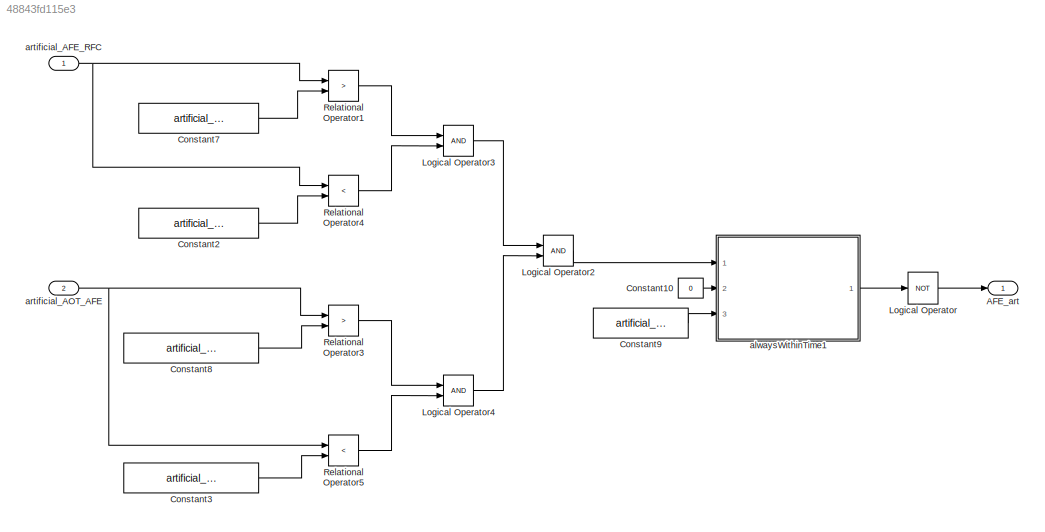
MODEL slx_48843fd115e3
KIND model
CONFIG AbsTol = auto
CONFIG EnableMultiTasking = off
CONFIG FixedStep = fixedStepSize
CONFIG MaxStep = auto
CONFIG MinStep = auto
CONFIG RelTol = 1e-3
CONFIG SampleTimeConstraint = Unconstrained
CONFIG Solver = FixedStepAuto
CONFIG SolverName = FixedStepAuto
CONFIG StartTime = 0.0
CONFIG StopTime = 10.0
BLOCK [Outport] AFE_art
  IconDisplay = Port number
  OutDataTypeStr = boolean
  PortDimensions = 1
  SamplingMode = Sample based
  SignalType = real
  VectorParamsAs1DForOutWhenUnconnected = off
BLOCK [Constant] Constant10
  Value = 0
BLOCK [Constant] Constant2
  Value = artificial_AFE_RFC_max
BLOCK [Constant] Constant3
  Value = artificial_AOT_AFE_max
BLOCK [Constant] Constant7
  Value = artificial_AFE_RFC_min
BLOCK [Constant] Constant8
  Value = artificial_AOT_AFE_min
BLOCK [Constant] Constant9
  Value = artificial_AFE_time
BLOCK [Logic] Logical Operator
  AllPortsSameDT = off
  Operator = NOT
  OutDataTypeStr = boolean
  Ports = [1, 1]
BLOCK [Logic] Logical Operator2
  AllPortsSameDT = off
  OutDataTypeStr = boolean
  Ports = [2, 1]
BLOCK [Logic] Logical Operator3
  AllPortsSameDT = off
  OutDataTypeStr = boolean
  Ports = [2, 1]
BLOCK [Logic] Logical Operator4
  AllPortsSameDT = off
  OutDataTypeStr = boolean
  Ports = [2, 1]
BLOCK [RelationalOperator] Relational Operator1
  InputSameDT = off
  Operator = >
  OutDataTypeStr = boolean
  Ports = [2, 1]
  RndMeth = Simplest
BLOCK [RelationalOperator] Relational Operator3
  InputSameDT = off
  Operator = >
  OutDataTypeStr = boolean
  Ports = [2, 1]
  RndMeth = Simplest
BLOCK [RelationalOperator] Relational Operator4
  InputSameDT = off
  Operator = <
  OutDataTypeStr = boolean
  Ports = [2, 1]
  RndMeth = Simplest
BLOCK [RelationalOperator] Relational Operator5
  InputSameDT = off
  Operator = <
  OutDataTypeStr = boolean
  Ports = [2, 1]
  RndMeth = Simplest
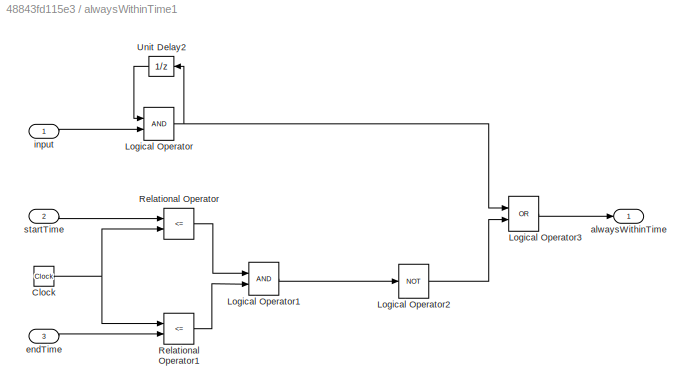
BLOCK [SubSystem] alwaysWithinTime1
  CopyFcn = set_param(gcbh,'LinkStatus','none');
  Ports = [3, 1]
  RequestExecContextInheritance = off
BLOCK [Clock] alwaysWithinTime1/Clock
BLOCK [Logic] alwaysWithinTime1/Logical Operator
  AllPortsSameDT = off
  OutDataTypeStr = boolean
  Ports = [2, 1]
BLOCK [Logic] alwaysWithinTime1/Logical Operator1
  AllPortsSameDT = off
  OutDataTypeStr = boolean
  Ports = [2, 1]
BLOCK [Logic] alwaysWithinTime1/Logical Operator2
  AllPortsSameDT = off
  Operator = NOT
  OutDataTypeStr = boolean
  Ports = [1, 1]
BLOCK [Logic] alwaysWithinTime1/Logical Operator3
  AllPortsSameDT = off
  Operator = OR
  OutDataTypeStr = boolean
  Ports = [2, 1]
BLOCK [RelationalOperator] alwaysWithinTime1/Relational Operator
  InputSameDT = off
  Operator = <=
  OutDataTypeStr = boolean
  Ports = [2, 1]
  RndMeth = Simplest
BLOCK [RelationalOperator] alwaysWithinTime1/Relational Operator1
  InputSameDT = off
  Operator = <=
  OutDataTypeStr = boolean
  Ports = [2, 1]
  RndMeth = Simplest
BLOCK [UnitDelay] alwaysWithinTime1/Unit Delay2
  HasFrameUpgradeWarning = on
  InitialCondition = 1
  SampleTime = -1
BLOCK [Outport] alwaysWithinTime1/alwaysWithinTime
  IconDisplay = Port number
  VectorParamsAs1DForOutWhenUnconnected = off
BLOCK [Inport] alwaysWithinTime1/endTime
  IconDisplay = Port number
  Port = 3
BLOCK [Inport] alwaysWithinTime1/input
  IconDisplay = Port number
BLOCK [Inport] alwaysWithinTime1/startTime
  IconDisplay = Port number
  Port = 2
BLOCK [Inport] artificial_AFE_RFC
  IconDisplay = Port number
BLOCK [Inport] artificial_AOT_AFE
  IconDisplay = Port number
  Port = 2
LINE Constant10:1 -> alwaysWithinTime1:2
LINE Constant2:1 -> Relational Operator4:2
LINE Constant3:1 -> Relational Operator5:2
LINE Constant7:1 -> Relational Operator1:2
LINE Constant8:1 -> Relational Operator3:2
LINE Constant9:1 -> alwaysWithinTime1:3
LINE Logical Operator2:1 -> alwaysWithinTime1:1
LINE Logical Operator3:1 -> Logical Operator2:1
LINE Logical Operator4:1 -> Logical Operator2:2
LINE Logical Operator:1 -> AFE_art:1
LINE Relational Operator1:1 -> Logical Operator3:1
LINE Relational Operator3:1 -> Logical Operator4:1
LINE Relational Operator4:1 -> Logical Operator3:2
LINE Relational Operator5:1 -> Logical Operator4:2
NET alwaysWithinTime1/Clock:1 -> alwaysWithinTime1/Relational Operator1:1, alwaysWithinTime1/Relational Operator:2
LINE alwaysWithinTime1/Logical Operator1:1 -> alwaysWithinTime1/Logical Operator2:1
LINE alwaysWithinTime1/Logical Operator2:1 -> alwaysWithinTime1/Logical Operator3:2
LINE alwaysWithinTime1/Logical Operator3:1 -> alwaysWithinTime1/alwaysWithinTime:1
NET alwaysWithinTime1/Logical Operator:1 -> alwaysWithinTime1/Logical Operator3:1, alwaysWithinTime1/Unit Delay2:1
LINE alwaysWithinTime1/Relational Operator1:1 -> alwaysWithinTime1/Logical Operator1:2
LINE alwaysWithinTime1/Relational Operator:1 -> alwaysWithinTime1/Logical Operator1:1
LINE alwaysWithinTime1/Unit Delay2:1 -> alwaysWithinTime1/Logical Operator:1
LINE alwaysWithinTime1/endTime:1 -> alwaysWithinTime1/Relational Operator1:2
LINE alwaysWithinTime1/input:1 -> alwaysWithinTime1/Logical Operator:2
LINE alwaysWithinTime1/startTime:1 -> alwaysWithinTime1/Relational Operator:1
LINE alwaysWithinTime1:1 -> Logical Operator:1
NET artificial_AFE_RFC:1 -> Relational Operator1:1, Relational Operator4:1
NET artificial_AOT_AFE:1 -> Relational Operator3:1, Relational Operator5:1
note: NET lines group one-source signal fan-out (src -> all destinations, sorted); 1:1 wires keep LINE
